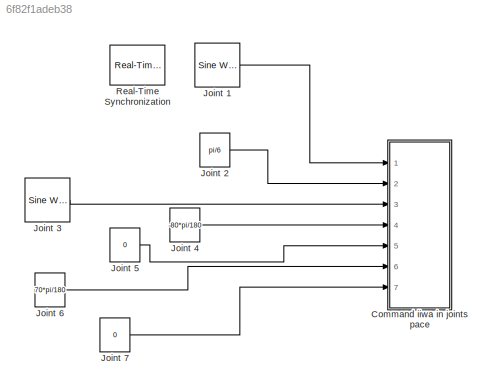
MODEL slx_6f82f1adeb38
KIND model
CONFIG AbsTol = auto
CONFIG EnableMultiTasking = off
CONFIG FixedStep = auto
CONFIG MaxStep = auto
CONFIG MinStep = auto
CONFIG RelTol = 1e-3
CONFIG SampleTimeConstraint = Unconstrained
CONFIG Solver = FixedStepAuto
CONFIG SolverName = FixedStepAuto
CONFIG StartTime = 0.0
CONFIG StopTime = 100.0
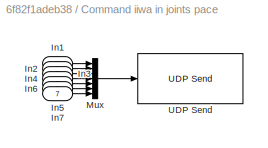
BLOCK [SubSystem] Command iiwa in joints pace
  Ports = [7]
  RequestExecContextInheritance = off
BLOCK [Inport] Command iiwa in joints pace/In1
  IconDisplay = Port number
BLOCK [Inport] Command iiwa in joints pace/In2
  IconDisplay = Port number
  Port = 2
BLOCK [Inport] Command iiwa in joints pace/In3
  IconDisplay = Port number
  Port = 3
BLOCK [Inport] Command iiwa in joints pace/In4
  IconDisplay = Port number
  Port = 4
BLOCK [Inport] Command iiwa in joints pace/In5
  IconDisplay = Port number
  Port = 5
BLOCK [Inport] Command iiwa in joints pace/In6
  IconDisplay = Port number
  Port = 6
BLOCK [Inport] Command iiwa in joints pace/In7
  IconDisplay = Port number
  Port = 7
BLOCK [Mux] Command iiwa in joints pace/Mux
  DisplayOption = bar
  Inputs = 7
  Ports = [7, 1]
BLOCK [Reference] Command iiwa in joints pace/UDP Send  REF=dspnetwork/UDP Send
  Ports = [1]
  SourceBlock = dspnetwork/UDP Send
  SourceProductBaseCode = DS
  SourceProductName = DSP System Toolbox
  SourceType = UDP Send
BLOCK [Reference] Joint 1  REF=dspsrcs4/Sine Wave
  Ports = [0, 1]
  SourceBlock = dspsrcs4/Sine Wave
  SourceProductBaseCode = DS
  SourceProductName = DSP System Toolbox
  SourceType = Sine Wave
BLOCK [Constant] Joint 2
  SampleTime = 1/1000
  Value = pi/6
  VectorParams1D = off
BLOCK [Reference] Joint 3  REF=dspsrcs4/Sine Wave
  Ports = [0, 1]
  SourceBlock = dspsrcs4/Sine Wave
  SourceProductBaseCode = DS
  SourceProductName = DSP System Toolbox
  SourceType = Sine Wave
BLOCK [Constant] Joint 4
  SampleTime = 1/1000
  Value = -80*pi/180
  VectorParams1D = off
BLOCK [Constant] Joint 5
  SampleTime = 1/1000
  Value = 0
  VectorParams1D = off
BLOCK [Constant] Joint 6
  SampleTime = 1/1000
  Value = 70*pi/180
  VectorParams1D = off
BLOCK [Constant] Joint 7
  SampleTime = 1/1000
  Value = 0
  VectorParams1D = off
BLOCK [Reference] Real-Time Synchronization  REF=sldrtlib/Real-Time
Synchronization
  Ports = []
  SourceBlock = sldrtlib/Real-Time\nSynchronization
  SourceProductBaseCode = WT
  SourceProductName = Simulink Desktop Real-Time
  SourceType = Simulink Desktop Real-Time Synchronization
LINE Command iiwa in joints pace/In1:1 -> Command iiwa in joints pace/Mux:1
LINE Command iiwa in joints pace/In2:1 -> Command iiwa in joints pace/Mux:2
LINE Command iiwa in joints pace/In3:1 -> Command iiwa in joints pace/Mux:3
LINE Command iiwa in joints pace/In4:1 -> Command iiwa in joints pace/Mux:4
LINE Command iiwa in joints pace/In5:1 -> Command iiwa in joints pace/Mux:5
LINE Command iiwa in joints pace/In6:1 -> Command iiwa in joints pace/Mux:6
LINE Command iiwa in joints pace/In7:1 -> Command iiwa in joints pace/Mux:7
LINE Command iiwa in joints pace/Mux:1 -> Command iiwa in joints pace/UDP Send:1
LINE Joint 1:1 -> Command iiwa in joints pace:1
LINE Joint 2:1 -> Command iiwa in joints pace:2
LINE Joint 3:1 -> Command iiwa in joints pace:3
LINE Joint 4:1 -> Command iiwa in joints pace:4
LINE Joint 5:1 -> Command iiwa in joints pace:5
LINE Joint 6:1 -> Command iiwa in joints pace:6
LINE Joint 7:1 -> Command iiwa in joints pace:7
